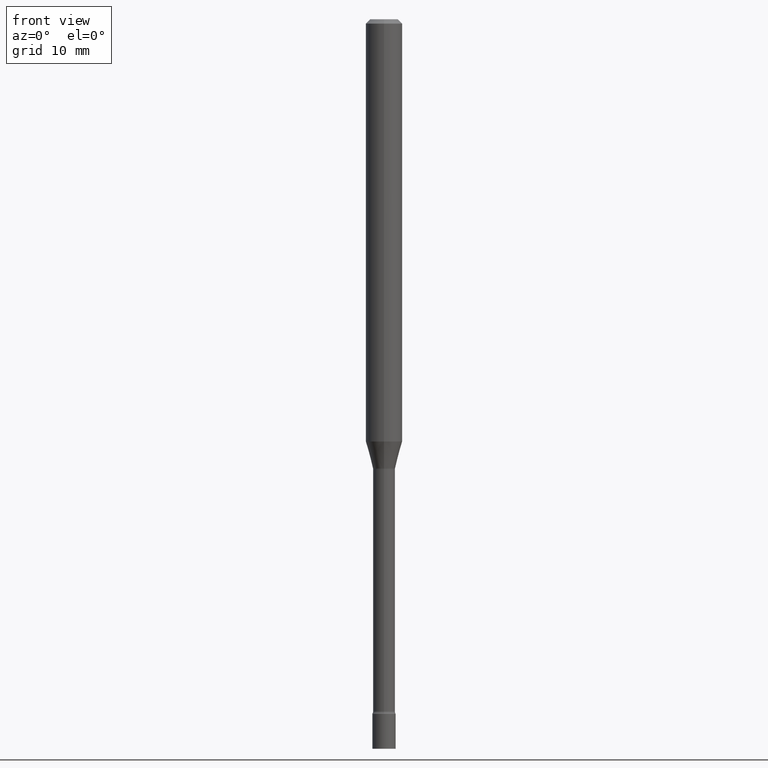
[diagram: clean part render]
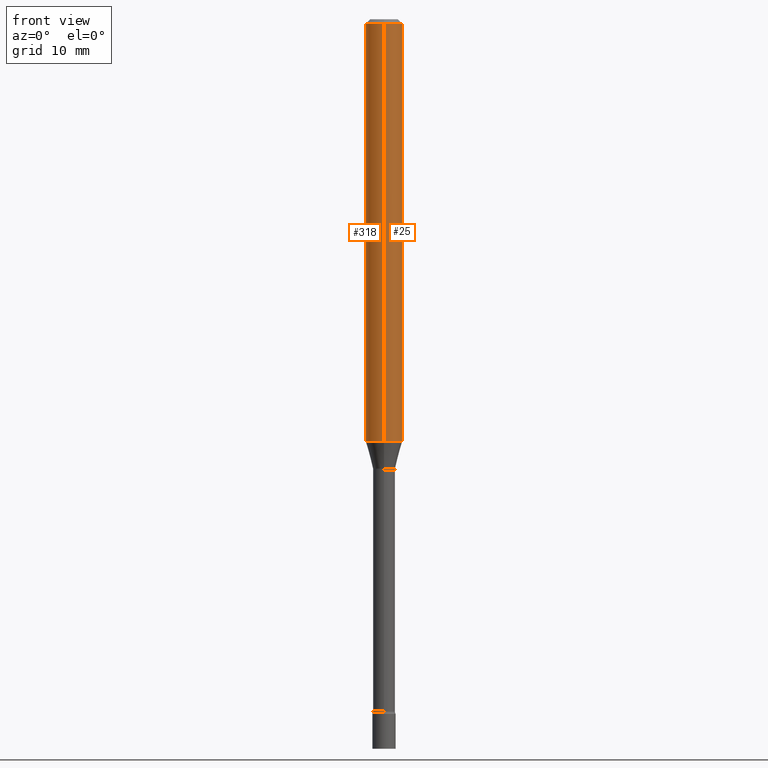
[diagram: same view with one multi-face feature highlighted, each face labeled with its STEP entity id]
A machine part, front view. The highlighted faces form ONE feature: a constant-radius fillet chain: 2 tangent blend faces with common blend radius 1.5875 mm. The faces share edges in the B-rep.
Their STEP definitions:
[1] entity #318 (Cylinder):
#6 = EDGE_CURVE ( 'NONE', #326, #100, #402, .T. ) ;
#22 = EDGE_CURVE ( 'NONE', #28, #315, #311, .T. ) ;
#23 = ORIENTED_EDGE ( 'NONE', *, *, #22, .F. ) ;
#28 = VERTEX_POINT ( 'NONE', #448 ) ;
#45 = CARTESIAN_POINT ( 'NONE',  ( -4.364351673553912750E-16, -0.06250000000000005551, -0.01499999999999981209 ) ) ;
#58 = DIRECTION ( 'NONE',  ( -2.445461116337205302E-29, 3.491492351143061653E-15, 1.000000000000000000 ) ) ;
#69 = AXIS2_PLACEMENT_3D ( 'NONE', #356, #445, #117 ) ;
#96 = CIRCLE ( 'NONE', #69, 0.06250000000000000000 ) ;
#100 = VERTEX_POINT ( 'NONE', #45 ) ;
#109 = CARTESIAN_POINT ( 'NONE',  ( -4.364351673553565651E-16, -0.06250000000000509315, -1.447071934891535072 ) ) ;
#115 = AXIS2_PLACEMENT_3D ( 'NONE', #283, #487, #446 ) ;
#117 = DIRECTION ( 'NONE',  ( -6.982962677686265922E-15, -1.000000000000000000, 3.483106191921935554E-15 ) ) ;
#150 = VECTOR ( 'NONE', #58, 39.37007874015748143 ) ;
#157 = DIRECTION ( 'NONE',  ( -2.445461116337205302E-29, 3.491492351143062048E-15, 1.000000000000000000 ) ) ;
#174 = CARTESIAN_POINT ( 'NONE',  ( 4.440892098500982135E-16, 0.06249999999999995143, -0.01500000000000024751 ) ) ;
#192 = CYLINDRICAL_SURFACE ( 'NONE', #232, 0.06250000000000000000 ) ;
#210 = ORIENTED_EDGE ( 'NONE', *, *, #6, .T. ) ;
#232 = AXIS2_PLACEMENT_3D ( 'NONE', #515, #157, #316 ) ;
#234 = DIRECTION ( 'NONE',  ( -2.445461116337205302E-29, 3.491492351143061653E-15, 1.000000000000000000 ) ) ;
#254 = CIRCLE ( 'NONE', #115, 0.06250000000000000000 ) ;
#274 = EDGE_CURVE ( 'NONE', #28, #326, #254, .T. ) ;
#283 = CARTESIAN_POINT ( 'NONE',  ( 3.538758149320093430E-29, -5.052440592227586614E-15, -1.447071934891535294 ) ) ;
#311 = LINE ( 'NONE', #474, #320 ) ;
#315 = VERTEX_POINT ( 'NONE', #174 ) ;
#316 = DIRECTION ( 'NONE',  ( -6.982962677686265922E-15, -1.000000000000000000, 3.491492351143062048E-15 ) ) ;
#318 = ADVANCED_FACE ( 'NONE', ( #390 ), #192, .T. ) ;
#320 = VECTOR ( 'NONE', #234, 39.37007874015748143 ) ;
#326 = VERTEX_POINT ( 'NONE', #109 ) ;
#356 = CARTESIAN_POINT ( 'NONE',  ( 3.668191674505815275E-31, -5.237238526714604140E-17, -0.01500000000000003067 ) ) ;
#366 = EDGE_LOOP ( 'NONE', ( #23, #382, #210, #457 ) ) ;
#382 = ORIENTED_EDGE ( 'NONE', *, *, #274, .T. ) ;
#390 = FACE_OUTER_BOUND ( 'NONE', #366, .T. ) ;
#402 = LINE ( 'NONE', #433, #150 ) ;
#406 = EDGE_CURVE ( 'NONE', #315, #100, #96, .T. ) ;
#433 = CARTESIAN_POINT ( 'NONE',  ( -4.364351673553916201E-16, -0.06250000000000000000, 2.182182719464413780E-16 ) ) ;
#445 = DIRECTION ( 'NONE',  ( -2.445461116337205302E-29, 3.491492351143062048E-15, 1.000000000000000000 ) ) ;
#446 = DIRECTION ( 'NONE',  ( -6.982962677686265922E-15, -1.000000000000000000, 4.370956789862821150E-15 ) ) ;
#448 = CARTESIAN_POINT ( 'NONE',  ( 4.440892098500976219E-16, 0.06249999999999491379, -1.447071934891535516 ) ) ;
#457 = ORIENTED_EDGE ( 'NONE', *, *, #406, .F. ) ;
#474 = CARTESIAN_POINT ( 'NONE',  ( 4.440892098500625669E-16, 0.06250000000000000000, -2.182182719464413780E-16 ) ) ;
#487 = DIRECTION ( 'NONE',  ( -2.445461116337205302E-29, 3.491492351143062048E-15, 1.000000000000000000 ) ) ;
#515 = CARTESIAN_POINT ( 'NONE',  ( 0.000000000000000000, 0.000000000000000000, 0.000000000000000000 ) ) ;
[2] entity #25 (Cylinder):
#6 = EDGE_CURVE ( 'NONE', #326, #100, #402, .T. ) ;
#13 = DIRECTION ( 'NONE',  ( -2.445461116337205302E-29, 3.491492351143062048E-15, 1.000000000000000000 ) ) ;
#18 = AXIS2_PLACEMENT_3D ( 'NONE', #518, #277, #179 ) ;
#22 = EDGE_CURVE ( 'NONE', #28, #315, #311, .T. ) ;
#25 = ADVANCED_FACE ( 'NONE', ( #83 ), #391, .T. ) ;
#28 = VERTEX_POINT ( 'NONE', #448 ) ;
#45 = CARTESIAN_POINT ( 'NONE',  ( -4.364351673553912750E-16, -0.06250000000000005551, -0.01499999999999981209 ) ) ;
#49 = ORIENTED_EDGE ( 'NONE', *, *, #463, .T. ) ;
#58 = DIRECTION ( 'NONE',  ( -2.445461116337205302E-29, 3.491492351143061653E-15, 1.000000000000000000 ) ) ;
#77 = DIRECTION ( 'NONE',  ( -6.982962677686265922E-15, -1.000000000000000000, 3.483106191921935554E-15 ) ) ;
#83 = FACE_OUTER_BOUND ( 'NONE', #379, .T. ) ;
#95 = AXIS2_PLACEMENT_3D ( 'NONE', #324, #184, #77 ) ;
#100 = VERTEX_POINT ( 'NONE', #45 ) ;
#103 = DIRECTION ( 'NONE',  ( -6.982962677686265922E-15, -1.000000000000000000, 4.370956789862821150E-15 ) ) ;
#109 = CARTESIAN_POINT ( 'NONE',  ( -4.364351673553565651E-16, -0.06250000000000509315, -1.447071934891535072 ) ) ;
#150 = VECTOR ( 'NONE', #58, 39.37007874015748143 ) ;
#174 = CARTESIAN_POINT ( 'NONE',  ( 4.440892098500982135E-16, 0.06249999999999995143, -0.01500000000000024751 ) ) ;
#177 = CIRCLE ( 'NONE', #233, 0.06250000000000000000 ) ;
#179 = DIRECTION ( 'NONE',  ( -6.982962677686265922E-15, -1.000000000000000000, 3.491492351143062048E-15 ) ) ;
#180 = EDGE_CURVE ( 'NONE', #100, #315, #470, .T. ) ;
#184 = DIRECTION ( 'NONE',  ( -2.445461116337205302E-29, 3.491492351143062048E-15, 1.000000000000000000 ) ) ;
#194 = ORIENTED_EDGE ( 'NONE', *, *, #6, .F. ) ;
#233 = AXIS2_PLACEMENT_3D ( 'NONE', #363, #13, #103 ) ;
#234 = DIRECTION ( 'NONE',  ( -2.445461116337205302E-29, 3.491492351143061653E-15, 1.000000000000000000 ) ) ;
#248 = ORIENTED_EDGE ( 'NONE', *, *, #180, .F. ) ;
#252 = ORIENTED_EDGE ( 'NONE', *, *, #22, .T. ) ;
#277 = DIRECTION ( 'NONE',  ( -2.445461116337205302E-29, 3.491492351143062048E-15, 1.000000000000000000 ) ) ;
#311 = LINE ( 'NONE', #474, #320 ) ;
#315 = VERTEX_POINT ( 'NONE', #174 ) ;
#320 = VECTOR ( 'NONE', #234, 39.37007874015748143 ) ;
#324 = CARTESIAN_POINT ( 'NONE',  ( 3.668191674505815275E-31, -5.237238526714604140E-17, -0.01500000000000003067 ) ) ;
#326 = VERTEX_POINT ( 'NONE', #109 ) ;
#363 = CARTESIAN_POINT ( 'NONE',  ( 3.538758149320093430E-29, -5.052440592227586614E-15, -1.447071934891535294 ) ) ;
#379 = EDGE_LOOP ( 'NONE', ( #49, #252, #248, #194 ) ) ;
#391 = CYLINDRICAL_SURFACE ( 'NONE', #18, 0.06250000000000000000 ) ;
#402 = LINE ( 'NONE', #433, #150 ) ;
#433 = CARTESIAN_POINT ( 'NONE',  ( -4.364351673553916201E-16, -0.06250000000000000000, 2.182182719464413780E-16 ) ) ;
#448 = CARTESIAN_POINT ( 'NONE',  ( 4.440892098500976219E-16, 0.06249999999999491379, -1.447071934891535516 ) ) ;
#463 = EDGE_CURVE ( 'NONE', #326, #28, #177, .T. ) ;
#470 = CIRCLE ( 'NONE', #95, 0.06250000000000000000 ) ;
#474 = CARTESIAN_POINT ( 'NONE',  ( 4.440892098500625669E-16, 0.06250000000000000000, -2.182182719464413780E-16 ) ) ;
#518 = CARTESIAN_POINT ( 'NONE',  ( 0.000000000000000000, 0.000000000000000000, 0.000000000000000000 ) ) ;